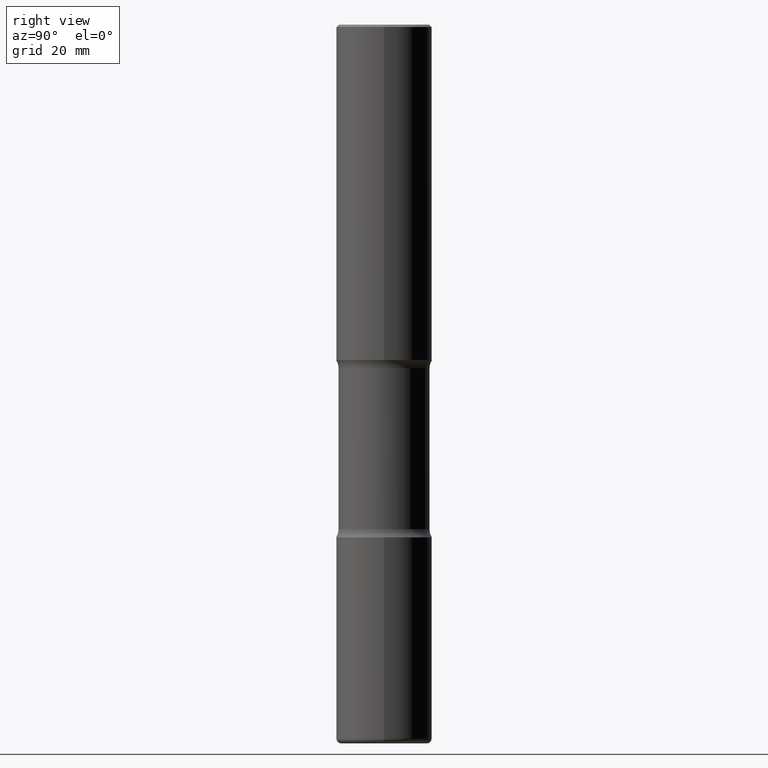
[diagram: clean part render]
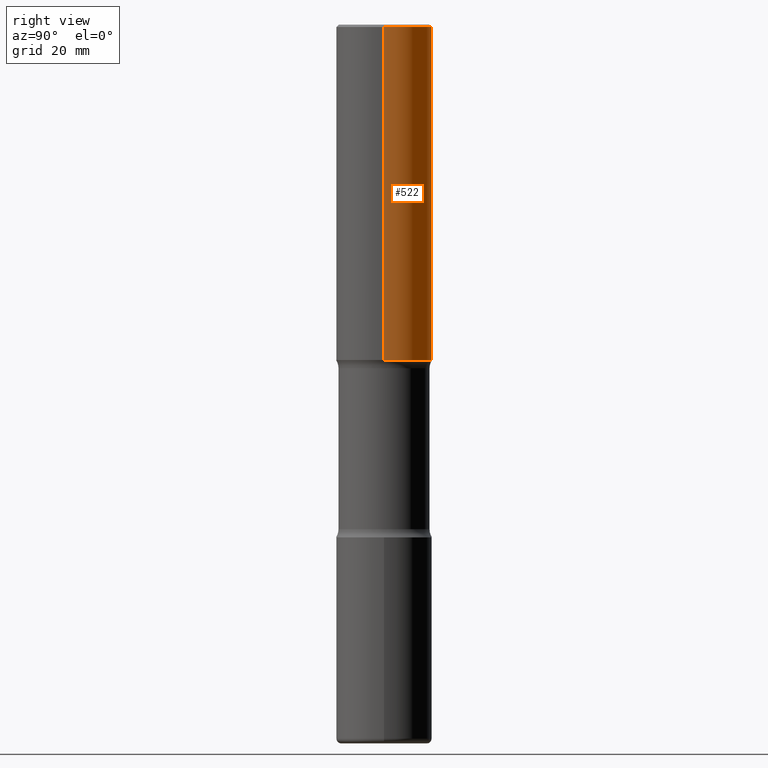
[diagram: same view with one face highlighted and labeled with its STEP entity id]
A machine part, right view. The second image highlights one B-rep face of the part: STEP entity #522.
In plain terms, the highlighted cylindrical surface (partial cylindrical patch) has radius 10 mm, axis along (-0, 0, 1).
Its self-contained STEP definition (entity closure, byte-faithful):
#8 = DIRECTION ( 'NONE',  ( 1.000000000000000000, -6.982962677686266711E-15, 4.876176775795935793E-29 ) ) ;
#57 = EDGE_CURVE ( 'NONE', #196, #94, #82, .T. ) ;
#59 = DIRECTION ( 'NONE',  ( -2.445468806185136877E-29, 3.491481338843145188E-15, 1.000000000000000000 ) ) ;
#67 = CARTESIAN_POINT ( 'NONE',  ( 6.739467482965614869E-29, -9.622173421717819657E-15, -2.755899999999998240 ) ) ;
#74 = DIRECTION ( 'NONE',  ( -2.445468806185136877E-29, 3.491481338843145188E-15, 1.000000000000000000 ) ) ;
#80 = DIRECTION ( 'NONE',  ( -2.445468806185136597E-29, 3.491481338843145583E-15, 1.000000000000000000 ) ) ;
#82 = CIRCLE ( 'NONE', #145, 0.3936999999999999389 ) ;
#94 = VERTEX_POINT ( 'NONE', #219 ) ;
#95 = VECTOR ( 'NONE', #59, 39.37007874015748143 ) ;
#145 = AXIS2_PLACEMENT_3D ( 'NONE', #438, #205, #394 ) ;
#163 = ORIENTED_EDGE ( 'NONE', *, *, #57, .F. ) ;
#180 = EDGE_CURVE ( 'NONE', #530, #196, #473, .T. ) ;
#184 = AXIS2_PLACEMENT_3D ( 'NONE', #67, #80, #249 ) ;
#189 = ORIENTED_EDGE ( 'NONE', *, *, #246, .T. ) ;
#196 = VERTEX_POINT ( 'NONE', #299 ) ;
#205 = DIRECTION ( 'NONE',  ( -2.445468806185136597E-29, 3.491481338843145583E-15, 1.000000000000000000 ) ) ;
#219 = CARTESIAN_POINT ( 'NONE',  ( -0.3936999999999999389, 2.679362779428219524E-15, -0.02000000000000010103 ) ) ;
#236 = EDGE_LOOP ( 'NONE', ( #393, #189, #163, #465 ) ) ;
#238 = AXIS2_PLACEMENT_3D ( 'NONE', #458, #407, #8 ) ;
#246 = EDGE_CURVE ( 'NONE', #284, #94, #398, .T. ) ;
#249 = DIRECTION ( 'NONE',  ( 1.000000000000000000, -6.982962677686265133E-15, 0.000000000000000000 ) ) ;
#254 = CARTESIAN_POINT ( 'NONE',  ( -0.3937000000000001054, 2.797406750687515181E-15, -1.936584745033357016E-29 ) ) ;
#284 = VERTEX_POINT ( 'NONE', #330 ) ;
#299 = CARTESIAN_POINT ( 'NONE',  ( 0.3936999999999999389, -2.770807688499514945E-15, -0.02000000000000010103 ) ) ;
#301 = EDGE_CURVE ( 'NONE', #530, #284, #489, .T. ) ;
#330 = CARTESIAN_POINT ( 'NONE',  ( -0.3937000000000002720, -2.048594773559823141E-15, -2.755899999999998240 ) ) ;
#347 = CARTESIAN_POINT ( 'NONE',  ( 0.3937000000000002164, -1.237136582792290287E-14, -2.755899999999998240 ) ) ;
#393 = ORIENTED_EDGE ( 'NONE', *, *, #301, .T. ) ;
#394 = DIRECTION ( 'NONE',  ( 1.000000000000000000, -6.982962677686266711E-15, 0.000000000000000000 ) ) ;
#398 = LINE ( 'NONE', #254, #449 ) ;
#407 = DIRECTION ( 'NONE',  ( -2.445468806185136597E-29, 3.491481338843145583E-15, 1.000000000000000000 ) ) ;
#409 = CARTESIAN_POINT ( 'NONE',  ( 0.3937000000000001054, -2.749192406205084005E-15, 1.919750796630860452E-29 ) ) ;
#438 = CARTESIAN_POINT ( 'NONE',  ( 4.890937612370298557E-31, -6.982962677686327354E-17, -0.02000000000000010103 ) ) ;
#449 = VECTOR ( 'NONE', #74, 39.37007874015748143 ) ;
#458 = CARTESIAN_POINT ( 'NONE',  ( 0.000000000000000000, 0.000000000000000000, 0.000000000000000000 ) ) ;
#465 = ORIENTED_EDGE ( 'NONE', *, *, #180, .F. ) ;
#473 = LINE ( 'NONE', #409, #95 ) ;
#489 = CIRCLE ( 'NONE', #184, 0.3937000000000002164 ) ;
#507 = CYLINDRICAL_SURFACE ( 'NONE', #238, 0.3937000000000001054 ) ;
#522 = ADVANCED_FACE ( 'NONE', ( #540 ), #507, .T. ) ;
#530 = VERTEX_POINT ( 'NONE', #347 ) ;
#540 = FACE_OUTER_BOUND ( 'NONE', #236, .T. ) ;